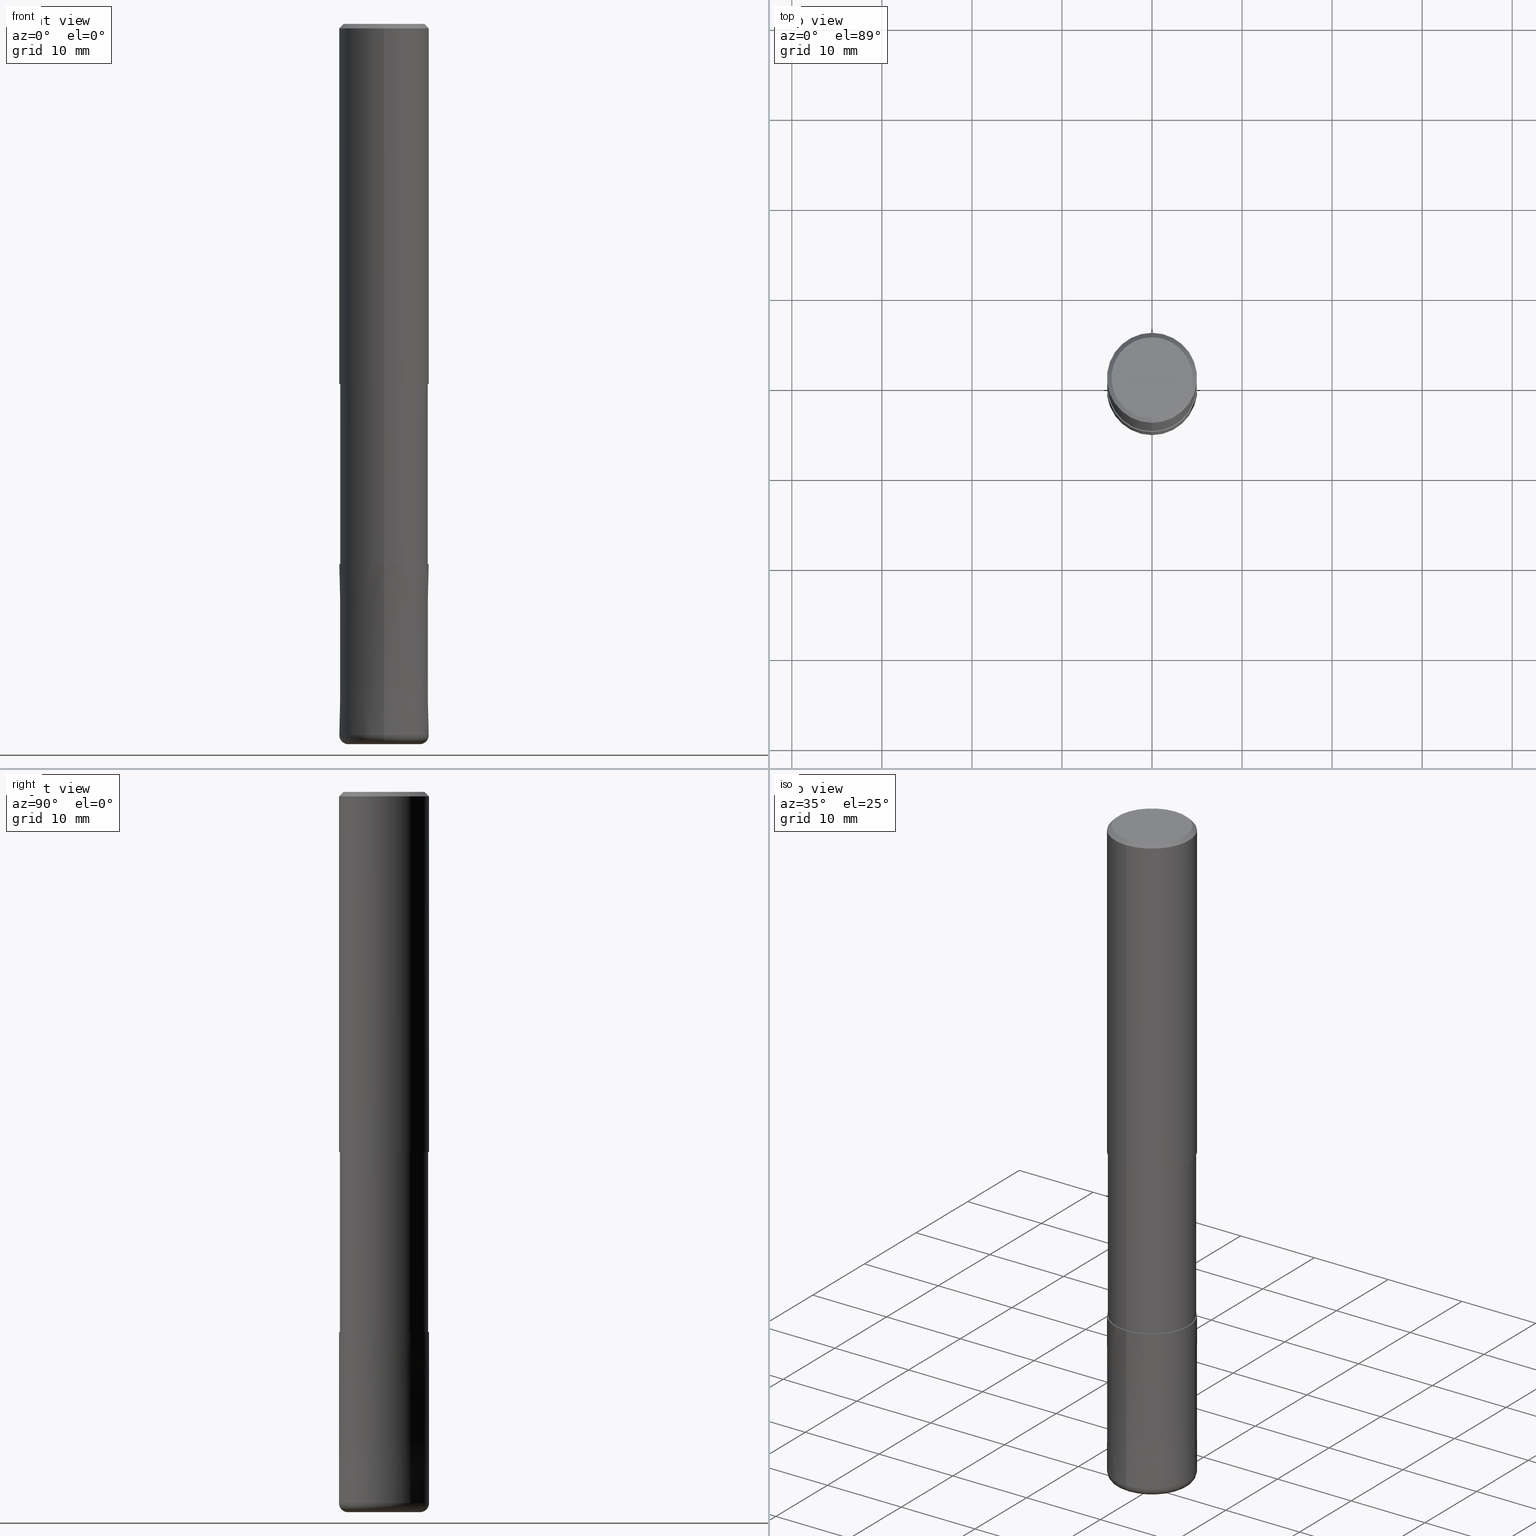
[diagram: canonical four-view strip — front | top / right | iso, engineering-drawing reading convention]
A machine part, canonical four-view strip (front | top / right | iso — engineering-drawing reading convention). The complete STEP part file that produces these views, byte-faithful:
ISO-10303-21;
HEADER;
FILE_DESCRIPTION(('no description'),'unknown implementation level');
FILE_NAME('CXLRS5100-10-40-Huellk.stp','  ',('CIMSOURCE GmbH'),('CADClick - KiM GmbH - www.kimweb.de'),'unknown preprocess','ACIS','unknown authorization');
FILE_SCHEMA(('automotive_design'));
ENDSEC;
DATA;
#1=MECHANICAL_DESIGN_GEOMETRIC_PRESENTATION_REPRESENTATION(' ',(#14,#15,#16,#17,#18,#19,#20,#21,#22,#23,#24,#25,#26,#27,#28,#29,#30,#31,#32,#33,#34,#35,#36,#37,#38,#39,#40,#41,#42,#43,#44,#45,#46,#47,#48,#49,#50,#51,#52,#53,#54,#55,#56,#57,#58,#59,#60,#61,#62,#63,#64,#65,#66,#67,#68,#69,#70,#71,#72,#73,#74,#75,#76,#77,#78,#79,#80,#81,#82,#83,#84,#85,#86,#87,#88,#89,#90,#91,#92,#93,#94,#95,#96,#97),#10);
#2=PRODUCT_DEFINITION_CONTEXT('',#98,'design');
#3=APPLICATION_PROTOCOL_DEFINITION('INTERNATIONAL STANDARD','automotive_design',1994,#98);
#4=PRODUCT_CATEGORY_RELATIONSHIP('NONE','NONE',#99,#100);
#5=SHAPE_DEFINITION_REPRESENTATION(#101,#102);
#6=PRODUCT_DEFINITION_CONTEXT('',#103,'design');
#7=APPLICATION_PROTOCOL_DEFINITION('INTERNATIONAL STANDARD','automotive_design',1994,#103);
#8=PRODUCT_CATEGORY_RELATIONSHIP('NONE','NONE',#104,#105);
#9=SHAPE_DEFINITION_REPRESENTATION(#106,#107);
#10= (GEOMETRIC_REPRESENTATION_CONTEXT(3)GLOBAL_UNCERTAINTY_ASSIGNED_CONTEXT((#110))GLOBAL_UNIT_ASSIGNED_CONTEXT((#112,#113,#114))REPRESENTATION_CONTEXT('NONE','WORKSPACE'));
#14=STYLED_ITEM('',(#116),#117);
#15=STYLED_ITEM('',(#118),#119);
#16=STYLED_ITEM('',(#120),#121);
#17=STYLED_ITEM('',(#122),#123);
#18=STYLED_ITEM('',(#124),#125);
#19=STYLED_ITEM('',(#126),#127);
#20=STYLED_ITEM('',(#128),#129);
#21=STYLED_ITEM('',(#130),#131);
#22=STYLED_ITEM('',(#132),#133);
#23=STYLED_ITEM('',(#134),#135);
#24=STYLED_ITEM('',(#136),#137);
#25=STYLED_ITEM('',(#138),#139);
#26=STYLED_ITEM('',(#140),#141);
#27=STYLED_ITEM('',(#142),#143);
#28=STYLED_ITEM('',(#144),#145);
#29=STYLED_ITEM('',(#146),#147);
#30=STYLED_ITEM('',(#148),#149);
#31=STYLED_ITEM('',(#150),#151);
#32=STYLED_ITEM('',(#152),#153);
#33=STYLED_ITEM('',(#154),#155);
#34=STYLED_ITEM('',(#156),#157);
#35=STYLED_ITEM('',(#158),#159);
#36=STYLED_ITEM('',(#160),#161);
#37=STYLED_ITEM('',(#162),#163);
#38=STYLED_ITEM('',(#164),#165);
#39=STYLED_ITEM('',(#166),#167);
#40=STYLED_ITEM('',(#168),#169);
#41=STYLED_ITEM('',(#170),#171);
#42=STYLED_ITEM('',(#172),#173);
#43=STYLED_ITEM('',(#174),#175);
#44=STYLED_ITEM('',(#176),#177);
#45=STYLED_ITEM('',(#178),#179);
#46=STYLED_ITEM('',(#180),#181);
#47=STYLED_ITEM('',(#182),#183);
#48=STYLED_ITEM('',(#184),#185);
#49=STYLED_ITEM('',(#186),#187);
#50=STYLED_ITEM('',(#188),#189);
#51=STYLED_ITEM('',(#190),#191);
#52=STYLED_ITEM('',(#192),#193);
#53=STYLED_ITEM('',(#194),#195);
#54=STYLED_ITEM('',(#196),#197);
#55=STYLED_ITEM('',(#198),#199);
#56=STYLED_ITEM('',(#200),#201);
#57=STYLED_ITEM('',(#202),#203);
#58=STYLED_ITEM('',(#204),#205);
#59=STYLED_ITEM('',(#206),#207);
#60=STYLED_ITEM('',(#208),#209);
#61=STYLED_ITEM('',(#210),#211);
#62=STYLED_ITEM('',(#212),#213);
#63=STYLED_ITEM('',(#214),#215);
#64=STYLED_ITEM('',(#216),#217);
#65=STYLED_ITEM('',(#218),#219);
#66=STYLED_ITEM('',(#220),#221);
#67=STYLED_ITEM('',(#222),#223);
#68=STYLED_ITEM('',(#224),#225);
#69=STYLED_ITEM('',(#226),#227);
#70=STYLED_ITEM('',(#228),#229);
#71=STYLED_ITEM('',(#230),#231);
#72=STYLED_ITEM('',(#232),#233);
#73=STYLED_ITEM('',(#234),#235);
#74=STYLED_ITEM('',(#236),#237);
#75=STYLED_ITEM('',(#238),#239);
#76=STYLED_ITEM('',(#240),#241);
#77=STYLED_ITEM('',(#242),#243);
#78=STYLED_ITEM('',(#244),#245);
#79=STYLED_ITEM('',(#246),#247);
#80=STYLED_ITEM('',(#248),#249);
#81=STYLED_ITEM('',(#250),#251);
#82=STYLED_ITEM('',(#252),#253);
#83=STYLED_ITEM('',(#254),#255);
#84=STYLED_ITEM('',(#256),#257);
#85=STYLED_ITEM('',(#258),#259);
#86=STYLED_ITEM('',(#260),#261);
#87=STYLED_ITEM('',(#262),#263);
#88=STYLED_ITEM('',(#264),#265);
#89=STYLED_ITEM('',(#266),#267);
#90=STYLED_ITEM('',(#268),#269);
#91=STYLED_ITEM('',(#270),#271);
#92=STYLED_ITEM('',(#272),#273);
#93=STYLED_ITEM('',(#274),#275);
#94=STYLED_ITEM('',(#276),#277);
#95=STYLED_ITEM('',(#278),#279);
#96=STYLED_ITEM('',(#280),#281);
#97=STYLED_ITEM('',(#282),#283);
#98=APPLICATION_CONTEXT(' ');
#99=PRODUCT_CATEGORY('part','NONE');
#100=PRODUCT_RELATED_PRODUCT_CATEGORY('detail',' ',(#284));
#101=PRODUCT_DEFINITION_SHAPE('NONE','NONE',#285);
#102=ADVANCED_BREP_SHAPE_REPRESENTATION('1',(#283,#286),#10);
#103=APPLICATION_CONTEXT(' ');
#104=PRODUCT_CATEGORY('part','NONE');
#105=PRODUCT_RELATED_PRODUCT_CATEGORY('detail',' ',(#287));
#106=PRODUCT_DEFINITION_SHAPE('NONE','NONE',#288);
#107=ADVANCED_BREP_SHAPE_REPRESENTATION('2',(#183,#289),#10);
#110=UNCERTAINTY_MEASURE_WITH_UNIT(LENGTH_MEASURE(1.0E-006),#112,'','');
#112= (CONVERSION_BASED_UNIT('MILLIMETRE',#292)LENGTH_UNIT()NAMED_UNIT(#295));
#113= (NAMED_UNIT(#297)PLANE_ANGLE_UNIT()SI_UNIT($,.RADIAN.));
#114= (NAMED_UNIT(#297)SOLID_ANGLE_UNIT()SI_UNIT($,.STERADIAN.));
#116=PRESENTATION_STYLE_ASSIGNMENT((#303));
#117=ADVANCED_FACE('',(#304),#305,.T.);
#118=PRESENTATION_STYLE_ASSIGNMENT((#306));
#119=VERTEX_POINT('',#307);
#120=PRESENTATION_STYLE_ASSIGNMENT((#308));
#121=EDGE_CURVE('',#119,#165,#309,.T.);
#122=PRESENTATION_STYLE_ASSIGNMENT((#310));
#123=EDGE_CURVE('',#203,#253,#311,.T.);
#124=PRESENTATION_STYLE_ASSIGNMENT((#312));
#125=EDGE_CURVE('',#225,#279,#313,.T.);
#126=PRESENTATION_STYLE_ASSIGNMENT((#314));
#127=ADVANCED_FACE('',(#315),#316,.T.);
#128=PRESENTATION_STYLE_ASSIGNMENT((#317));
#129=EDGE_CURVE('',#137,#133,#318,.T.);
#130=PRESENTATION_STYLE_ASSIGNMENT((#319));
#131=EDGE_CURVE('',#271,#219,#320,.T.);
#132=PRESENTATION_STYLE_ASSIGNMENT((#321));
#133=VERTEX_POINT('',#322);
#134=PRESENTATION_STYLE_ASSIGNMENT((#323));
#135=ADVANCED_FACE('',(#324),#325,.T.);
#136=PRESENTATION_STYLE_ASSIGNMENT((#326));
#137=VERTEX_POINT('',#327);
#138=PRESENTATION_STYLE_ASSIGNMENT((#328));
#139=VERTEX_POINT('',#329);
#140=PRESENTATION_STYLE_ASSIGNMENT((#330));
#141=EDGE_CURVE('',#155,#231,#331,.T.);
#142=PRESENTATION_STYLE_ASSIGNMENT((#332));
#143=ADVANCED_FACE('',(#333,#334),#335,.T.);
#144=PRESENTATION_STYLE_ASSIGNMENT((#336));
#145=ADVANCED_FACE('',(#337),#338,.T.);
#146=PRESENTATION_STYLE_ASSIGNMENT((#339));
#147=VERTEX_POINT('',#340);
#148=PRESENTATION_STYLE_ASSIGNMENT((#341));
#149=EDGE_CURVE('',#165,#119,#342,.T.);
#150=PRESENTATION_STYLE_ASSIGNMENT((#343));
#151=VERTEX_POINT('',#344);
#152=PRESENTATION_STYLE_ASSIGNMENT((#345));
#153=EDGE_CURVE('',#139,#221,#346,.T.);
#154=PRESENTATION_STYLE_ASSIGNMENT((#347));
#155=VERTEX_POINT('',#348);
#156=PRESENTATION_STYLE_ASSIGNMENT((#349));
#157=EDGE_CURVE('',#163,#231,#350,.T.);
#158=PRESENTATION_STYLE_ASSIGNMENT((#351));
#159=EDGE_CURVE('',#231,#155,#352,.T.);
#160=PRESENTATION_STYLE_ASSIGNMENT((#353));
#161=EDGE_CURVE('',#279,#133,#354,.T.);
#162=PRESENTATION_STYLE_ASSIGNMENT((#355));
#163=VERTEX_POINT('',#356);
#164=PRESENTATION_STYLE_ASSIGNMENT((#357));
#165=VERTEX_POINT('',#358);
#166=PRESENTATION_STYLE_ASSIGNMENT((#359));
#167=EDGE_CURVE('',#139,#267,#360,.T.);
#168=PRESENTATION_STYLE_ASSIGNMENT((#361));
#169=EDGE_CURVE('',#147,#217,#362,.T.);
#170=PRESENTATION_STYLE_ASSIGNMENT((#363));
#171=EDGE_CURVE('',#261,#267,#364,.T.);
#172=PRESENTATION_STYLE_ASSIGNMENT((#365));
#173=EDGE_CURVE('',#221,#139,#366,.T.);
#174=PRESENTATION_STYLE_ASSIGNMENT((#367));
#175=ADVANCED_FACE('',(#368),#369,.T.);
#176=PRESENTATION_STYLE_ASSIGNMENT((#370));
#177=ADVANCED_FACE('',(#371),#372,.T.);
#178=PRESENTATION_STYLE_ASSIGNMENT((#373));
#179=EDGE_CURVE('',#279,#251,#374,.T.);
#180=PRESENTATION_STYLE_ASSIGNMENT((#375));
#181=EDGE_CURVE('',#155,#119,#376,.T.);
#182=PRESENTATION_STYLE_ASSIGNMENT((#377));
#183=MANIFOLD_SOLID_BREP('2',#378);
#184=PRESENTATION_STYLE_ASSIGNMENT((#379));
#185=ADVANCED_FACE('',(#380,#381),#382,.T.);
#186=PRESENTATION_STYLE_ASSIGNMENT((#383));
#187=EDGE_CURVE('',#223,#163,#384,.T.);
#188=PRESENTATION_STYLE_ASSIGNMENT((#385));
#189=EDGE_CURVE('',#253,#203,#386,.T.);
#190=PRESENTATION_STYLE_ASSIGNMENT((#387));
#191=EDGE_CURVE('',#165,#231,#388,.T.);
#192=PRESENTATION_STYLE_ASSIGNMENT((#389));
#193=EDGE_CURVE('',#267,#261,#390,.T.);
#194=PRESENTATION_STYLE_ASSIGNMENT((#391));
#195=EDGE_CURVE('',#137,#251,#392,.T.);
#196=PRESENTATION_STYLE_ASSIGNMENT((#393));
#197=EDGE_CURVE('',#251,#205,#394,.T.);
#198=PRESENTATION_STYLE_ASSIGNMENT((#395));
#199=EDGE_CURVE('',#253,#147,#396,.T.);
#200=PRESENTATION_STYLE_ASSIGNMENT((#397));
#201=EDGE_CURVE('',#219,#151,#398,.T.);
#202=PRESENTATION_STYLE_ASSIGNMENT((#399));
#203=VERTEX_POINT('',#400);
#204=PRESENTATION_STYLE_ASSIGNMENT((#401));
#205=VERTEX_POINT('',#402);
#206=PRESENTATION_STYLE_ASSIGNMENT((#403));
#207=ADVANCED_FACE('',(#404),#405,.T.);
#208=PRESENTATION_STYLE_ASSIGNMENT((#406));
#209=ADVANCED_FACE('',(#407),#408,.T.);
#210=PRESENTATION_STYLE_ASSIGNMENT((#409));
#211=EDGE_CURVE('',#269,#271,#410,.T.);
#212=PRESENTATION_STYLE_ASSIGNMENT((#411));
#213=EDGE_CURVE('',#225,#205,#412,.T.);
#214=PRESENTATION_STYLE_ASSIGNMENT((#413));
#215=ADVANCED_FACE('',(#414),#415,.F.);
#216=PRESENTATION_STYLE_ASSIGNMENT((#416));
#217=VERTEX_POINT('',#417);
#218=PRESENTATION_STYLE_ASSIGNMENT((#418));
#219=VERTEX_POINT('',#419);
#220=PRESENTATION_STYLE_ASSIGNMENT((#420));
#221=VERTEX_POINT('',#421);
#222=PRESENTATION_STYLE_ASSIGNMENT((#422));
#223=VERTEX_POINT('',#423);
#224=PRESENTATION_STYLE_ASSIGNMENT((#424));
#225=VERTEX_POINT('',#425);
#226=PRESENTATION_STYLE_ASSIGNMENT((#426));
#227=ADVANCED_FACE('',(#427),#428,.T.);
#228=PRESENTATION_STYLE_ASSIGNMENT((#429));
#229=EDGE_CURVE('',#155,#223,#430,.T.);
#230=PRESENTATION_STYLE_ASSIGNMENT((#431));
#231=VERTEX_POINT('',#432);
#232=PRESENTATION_STYLE_ASSIGNMENT((#433));
#233=EDGE_CURVE('',#133,#137,#434,.T.);
#234=PRESENTATION_STYLE_ASSIGNMENT((#435));
#235=ADVANCED_FACE('',(#436),#437,.T.);
#236=PRESENTATION_STYLE_ASSIGNMENT((#438));
#237=EDGE_CURVE('',#217,#147,#439,.T.);
#238=PRESENTATION_STYLE_ASSIGNMENT((#440));
#239=EDGE_CURVE('',#151,#269,#441,.T.);
#240=PRESENTATION_STYLE_ASSIGNMENT((#442));
#241=EDGE_CURVE('',#261,#221,#443,.T.);
#242=PRESENTATION_STYLE_ASSIGNMENT((#444));
#243=EDGE_CURVE('',#219,#271,#445,.T.);
#244=PRESENTATION_STYLE_ASSIGNMENT((#446));
#245=EDGE_CURVE('',#163,#223,#447,.T.);
#246=PRESENTATION_STYLE_ASSIGNMENT((#448));
#247=ADVANCED_FACE('',(#449,#450),#451,.T.);
#248=PRESENTATION_STYLE_ASSIGNMENT((#452));
#249=ADVANCED_FACE('',(#453),#454,.F.);
#250=PRESENTATION_STYLE_ASSIGNMENT((#455));
#251=VERTEX_POINT('',#456);
#252=PRESENTATION_STYLE_ASSIGNMENT((#457));
#253=VERTEX_POINT('',#458);
#254=PRESENTATION_STYLE_ASSIGNMENT((#459));
#255=ADVANCED_FACE('',(#460),#461,.T.);
#256=PRESENTATION_STYLE_ASSIGNMENT((#462));
#257=ADVANCED_FACE('',(#463,#464),#465,.T.);
#258=PRESENTATION_STYLE_ASSIGNMENT((#466));
#259=ADVANCED_FACE('',(#467),#468,.T.);
#260=PRESENTATION_STYLE_ASSIGNMENT((#469));
#261=VERTEX_POINT('',#470);
#262=PRESENTATION_STYLE_ASSIGNMENT((#471));
#263=EDGE_CURVE('',#217,#203,#472,.T.);
#264=PRESENTATION_STYLE_ASSIGNMENT((#473));
#265=ADVANCED_FACE('',(#474),#475,.T.);
#266=PRESENTATION_STYLE_ASSIGNMENT((#476));
#267=VERTEX_POINT('',#477);
#268=PRESENTATION_STYLE_ASSIGNMENT((#478));
#269=VERTEX_POINT('',#479);
#270=PRESENTATION_STYLE_ASSIGNMENT((#480));
#271=VERTEX_POINT('',#481);
#272=PRESENTATION_STYLE_ASSIGNMENT((#482));
#273=EDGE_CURVE('',#251,#279,#483,.T.);
#274=PRESENTATION_STYLE_ASSIGNMENT((#484));
#275=EDGE_CURVE('',#269,#151,#485,.T.);
#276=PRESENTATION_STYLE_ASSIGNMENT((#486));
#277=ADVANCED_FACE('',(#487),#488,.T.);
#278=PRESENTATION_STYLE_ASSIGNMENT((#489));
#279=VERTEX_POINT('',#490);
#280=PRESENTATION_STYLE_ASSIGNMENT((#491));
#281=EDGE_CURVE('',#205,#225,#492,.T.);
#282=PRESENTATION_STYLE_ASSIGNMENT((#493));
#283=MANIFOLD_SOLID_BREP('1',#494);
#284=PRODUCT('1','1','PART-1-DESC',(#495));
#285=PRODUCT_DEFINITION('NONE','NONE',#496,#2);
#286=AXIS2_PLACEMENT_3D('',#497,#498,#499);
#287=PRODUCT('2','2','PART-2-DESC',(#500));
#288=PRODUCT_DEFINITION('NONE','NONE',#501,#6);
#289=AXIS2_PLACEMENT_3D('',#502,#503,#504);
#292=LENGTH_MEASURE_WITH_UNIT(LENGTH_MEASURE(1.0),#505);
#295=DIMENSIONAL_EXPONENTS(1.0,0.0,0.0,0.0,0.0,0.0,0.0);
#297=DIMENSIONAL_EXPONENTS(0.0,0.0,0.0,0.0,0.0,0.0,0.0);
#303=SURFACE_STYLE_USAGE(.BOTH.,#506);
#304=FACE_OUTER_BOUND('',#507,.T.);
#305=CYLINDRICAL_SURFACE('',#508,4.89995);
#306=POINT_STYLE(' ',#509,POSITIVE_LENGTH_MEASURE(1.0E-006),#510);
#307=CARTESIAN_POINT('',(6.1229093084765E-016,-4.9999,-60.0));
#308=CURVE_STYLE('',#511,POSITIVE_LENGTH_MEASURE(1.0E-006),#512);
#309=CIRCLE('',#513,4.9999);
#310=CURVE_STYLE('',#514,POSITIVE_LENGTH_MEASURE(1.0E-006),#515);
#311=CIRCLE('',#516,2.25);
#312=CURVE_STYLE('',#517,POSITIVE_LENGTH_MEASURE(1.0E-006),#518);
#313=LINE('',#519,#520);
#314=SURFACE_STYLE_USAGE(.BOTH.,#521);
#315=FACE_OUTER_BOUND('',#522,.T.);
#316=CYLINDRICAL_SURFACE('',#523,5.0);
#317=CURVE_STYLE('',#524,POSITIVE_LENGTH_MEASURE(1.0E-006),#525);
#318=CIRCLE('',#526,5.0);
#319=CURVE_STYLE('',#527,POSITIVE_LENGTH_MEASURE(1.0E-006),#528);
#320=CIRCLE('',#529,4.89995);
#321=POINT_STYLE(' ',#530,POSITIVE_LENGTH_MEASURE(1.0E-006),#531);
#322=CARTESIAN_POINT('',(0.0,5.0,-40.0));
#323=SURFACE_STYLE_USAGE(.BOTH.,#532);
#324=FACE_OUTER_BOUND('',#533,.T.);
#325=CONICAL_SURFACE('',#534,4.99995,5.26315789467598E-006);
#326=POINT_STYLE(' ',#535,POSITIVE_LENGTH_MEASURE(1.0E-006),#536);
#327=CARTESIAN_POINT('',(6.12303176911189E-016,-5.0,-40.0));
#328=POINT_STYLE(' ',#537,POSITIVE_LENGTH_MEASURE(1.0E-006),#538);
#329=CARTESIAN_POINT('',(0.0,2.25,-60.0));
#330=CURVE_STYLE('',#539,POSITIVE_LENGTH_MEASURE(1.0E-006),#540);
#331=CIRCLE('',#541,5.0);
#332=SURFACE_STYLE_USAGE(.BOTH.,#542);
#333=FACE_OUTER_BOUND('',#543,.T.);
#334=FACE_BOUND('',#544,.T.);
#335=PLANE('',#545);
#336=SURFACE_STYLE_USAGE(.BOTH.,#546);
#337=FACE_OUTER_BOUND('',#547,.T.);
#338=CONICAL_SURFACE('',#548,4.99995,5.26315789467598E-006);
#339=POINT_STYLE(' ',#549,POSITIVE_LENGTH_MEASURE(1.0E-006),#550);
#340=CARTESIAN_POINT('',(2.75536429610035E-016,-2.25,-60.0));
#341=CURVE_STYLE('',#551,POSITIVE_LENGTH_MEASURE(1.0E-006),#552);
#342=CIRCLE('',#553,4.9999);
#343=POINT_STYLE(' ',#554,POSITIVE_LENGTH_MEASURE(1.0E-006),#555);
#344=CARTESIAN_POINT('',(0.0,4.89995,-60.0));
#345=CURVE_STYLE('',#556,POSITIVE_LENGTH_MEASURE(1.0E-006),#557);
#346=CIRCLE('',#558,2.25);
#347=POINT_STYLE(' ',#559,POSITIVE_LENGTH_MEASURE(1.0E-006),#560);
#348=CARTESIAN_POINT('',(6.12303176911188E-016,-5.0,-79.0));
#349=CURVE_STYLE('',#561,POSITIVE_LENGTH_MEASURE(1.0E-006),#562);
#350=CIRCLE('',#563,0.999999999999989);
#351=CURVE_STYLE('',#564,POSITIVE_LENGTH_MEASURE(1.0E-006),#565);
#352=CIRCLE('',#566,5.0);
#353=CURVE_STYLE('',#567,POSITIVE_LENGTH_MEASURE(1.0E-006),#568);
#354=LINE('',#569,#570);
#355=POINT_STYLE(' ',#571,POSITIVE_LENGTH_MEASURE(1.0E-006),#572);
#356=CARTESIAN_POINT('',(0.0,4.0,-80.0));
#357=POINT_STYLE(' ',#573,POSITIVE_LENGTH_MEASURE(1.0E-006),#574);
#358=CARTESIAN_POINT('',(0.0,4.9999,-60.0));
#359=CURVE_STYLE('',#575,POSITIVE_LENGTH_MEASURE(1.0E-006),#576);
#360=LINE('',#577,#578);
#361=CURVE_STYLE('',#579,POSITIVE_LENGTH_MEASURE(1.0E-006),#580);
#362=CIRCLE('',#581,2.25);
#363=CURVE_STYLE('',#582,POSITIVE_LENGTH_MEASURE(1.0E-006),#583);
#364=CIRCLE('',#584,2.25);
#365=CURVE_STYLE('',#585,POSITIVE_LENGTH_MEASURE(1.0E-006),#586);
#366=CIRCLE('',#587,2.25);
#367=SURFACE_STYLE_USAGE(.BOTH.,#588);
#368=FACE_OUTER_BOUND('',#589,.T.);
#369=CYLINDRICAL_SURFACE('',#590,2.25);
#370=SURFACE_STYLE_USAGE(.BOTH.,#591);
#371=FACE_OUTER_BOUND('',#592,.T.);
#372=PLANE('',#593);
#373=CURVE_STYLE('',#594,POSITIVE_LENGTH_MEASURE(1.0E-006),#595);
#374=CIRCLE('',#596,5.0);
#375=CURVE_STYLE('',#597,POSITIVE_LENGTH_MEASURE(1.0E-006),#598);
#376=LINE('',#599,#600);
#377=SURFACE_STYLE_USAGE(.BOTH.,#601);
#378=CLOSED_SHELL('',(#215,#207,#135,#247,#145,#209,#257,#249));
#379=SURFACE_STYLE_USAGE(.BOTH.,#602);
#380=FACE_BOUND('',#603,.T.);
#381=FACE_OUTER_BOUND('',#604,.T.);
#382=PLANE('',#605);
#383=CURVE_STYLE('',#606,POSITIVE_LENGTH_MEASURE(1.0E-006),#607);
#384=CIRCLE('',#608,4.0);
#385=CURVE_STYLE('',#609,POSITIVE_LENGTH_MEASURE(1.0E-006),#610);
#386=CIRCLE('',#611,2.25);
#387=CURVE_STYLE('',#612,POSITIVE_LENGTH_MEASURE(1.0E-006),#613);
#388=LINE('',#614,#615);
#389=CURVE_STYLE('',#616,POSITIVE_LENGTH_MEASURE(1.0E-006),#617);
#390=CIRCLE('',#618,2.25);
#391=CURVE_STYLE('',#619,POSITIVE_LENGTH_MEASURE(1.0E-006),#620);
#392=LINE('',#621,#622);
#393=CURVE_STYLE('',#623,POSITIVE_LENGTH_MEASURE(1.0E-006),#624);
#394=LINE('',#625,#626);
#395=CURVE_STYLE('',#627,POSITIVE_LENGTH_MEASURE(1.0E-006),#628);
#396=LINE('',#629,#630);
#397=CURVE_STYLE('',#631,POSITIVE_LENGTH_MEASURE(1.0E-006),#632);
#398=LINE('',#633,#634);
#399=POINT_STYLE(' ',#635,POSITIVE_LENGTH_MEASURE(1.0E-006),#636);
#400=CARTESIAN_POINT('',(0.0,2.25,-79.8));
#401=POINT_STYLE(' ',#637,POSITIVE_LENGTH_MEASURE(1.0E-006),#638);
#402=CARTESIAN_POINT('',(5.5107285922007E-016,-4.5,0.0));
#403=SURFACE_STYLE_USAGE(.BOTH.,#639);
#404=FACE_OUTER_BOUND('',#640,.T.);
#405=TOROIDAL_SURFACE('',#641,4.00000000000001,0.999999999999989);
#406=SURFACE_STYLE_USAGE(.BOTH.,#642);
#407=FACE_OUTER_BOUND('',#643,.T.);
#408=TOROIDAL_SURFACE('',#644,4.00000000000001,0.999999999999989);
#409=CURVE_STYLE('',#645,POSITIVE_LENGTH_MEASURE(1.0E-006),#646);
#410=LINE('',#647,#648);
#411=CURVE_STYLE('',#649,POSITIVE_LENGTH_MEASURE(1.0E-006),#650);
#412=CIRCLE('',#651,4.5);
#413=SURFACE_STYLE_USAGE(.BOTH.,#652);
#414=FACE_OUTER_BOUND('',#653,.T.);
#415=CYLINDRICAL_SURFACE('',#654,2.25);
#416=POINT_STYLE(' ',#655,POSITIVE_LENGTH_MEASURE(1.0E-006),#656);
#417=CARTESIAN_POINT('',(0.0,2.25,-60.0));
#418=POINT_STYLE(' ',#657,POSITIVE_LENGTH_MEASURE(1.0E-006),#658);
#419=CARTESIAN_POINT('',(0.0,4.89995,-40.0));
#420=POINT_STYLE(' ',#659,POSITIVE_LENGTH_MEASURE(1.0E-006),#660);
#421=CARTESIAN_POINT('',(2.75536429610035E-016,-2.25,-60.0));
#422=POINT_STYLE(' ',#661,POSITIVE_LENGTH_MEASURE(1.0E-006),#662);
#423=CARTESIAN_POINT('',(4.89842541528951E-016,-4.0,-80.0));
#424=POINT_STYLE(' ',#663,POSITIVE_LENGTH_MEASURE(1.0E-006),#664);
#425=CARTESIAN_POINT('',(0.0,4.5,0.0));
#426=SURFACE_STYLE_USAGE(.BOTH.,#665);
#427=FACE_OUTER_BOUND('',#666,.T.);
#428=CONICAL_SURFACE('',#667,4.75,0.785398163397448);
#429=CURVE_STYLE('',#668,POSITIVE_LENGTH_MEASURE(1.0E-006),#669);
#430=CIRCLE('',#670,0.999999999999989);
#431=POINT_STYLE(' ',#671,POSITIVE_LENGTH_MEASURE(1.0E-006),#672);
#432=CARTESIAN_POINT('',(0.0,5.0,-79.0));
#433=CURVE_STYLE('',#673,POSITIVE_LENGTH_MEASURE(1.0E-006),#674);
#434=CIRCLE('',#675,5.0);
#435=SURFACE_STYLE_USAGE(.BOTH.,#676);
#436=FACE_OUTER_BOUND('',#677,.T.);
#437=PLANE('',#678);
#438=CURVE_STYLE('',#679,POSITIVE_LENGTH_MEASURE(1.0E-006),#680);
#439=CIRCLE('',#681,2.25);
#440=CURVE_STYLE('',#682,POSITIVE_LENGTH_MEASURE(1.0E-006),#683);
#441=CIRCLE('',#684,4.89995);
#442=CURVE_STYLE('',#685,POSITIVE_LENGTH_MEASURE(1.0E-006),#686);
#443=LINE('',#687,#688);
#444=CURVE_STYLE('',#689,POSITIVE_LENGTH_MEASURE(1.0E-006),#690);
#445=CIRCLE('',#691,4.89995);
#446=CURVE_STYLE('',#692,POSITIVE_LENGTH_MEASURE(1.0E-006),#693);
#447=CIRCLE('',#694,4.0);
#448=SURFACE_STYLE_USAGE(.BOTH.,#695);
#449=FACE_OUTER_BOUND('',#696,.T.);
#450=FACE_BOUND('',#697,.T.);
#451=PLANE('',#698);
#452=SURFACE_STYLE_USAGE(.BOTH.,#699);
#453=FACE_OUTER_BOUND('',#700,.T.);
#454=CYLINDRICAL_SURFACE('',#701,2.25);
#455=POINT_STYLE(' ',#702,POSITIVE_LENGTH_MEASURE(1.0E-006),#703);
#456=CARTESIAN_POINT('',(6.12303176911189E-016,-5.0,-0.5));
#457=POINT_STYLE(' ',#704,POSITIVE_LENGTH_MEASURE(1.0E-006),#705);
#458=CARTESIAN_POINT('',(2.75536429610035E-016,-2.25,-79.8));
#459=SURFACE_STYLE_USAGE(.BOTH.,#706);
#460=FACE_OUTER_BOUND('',#707,.T.);
#461=CONICAL_SURFACE('',#708,4.75,0.785398163397448);
#462=SURFACE_STYLE_USAGE(.BOTH.,#709);
#463=FACE_BOUND('',#710,.T.);
#464=FACE_OUTER_BOUND('',#711,.T.);
#465=PLANE('',#712);
#466=SURFACE_STYLE_USAGE(.BOTH.,#713);
#467=FACE_OUTER_BOUND('',#714,.T.);
#468=CYLINDRICAL_SURFACE('',#715,2.25);
#469=POINT_STYLE(' ',#716,POSITIVE_LENGTH_MEASURE(1.0E-006),#717);
#470=CARTESIAN_POINT('',(2.75536429610035E-016,-2.25,-80.0));
#471=CURVE_STYLE('',#718,POSITIVE_LENGTH_MEASURE(1.0E-006),#719);
#472=LINE('',#720,#721);
#473=SURFACE_STYLE_USAGE(.BOTH.,#722);
#474=FACE_OUTER_BOUND('',#723,.T.);
#475=CYLINDRICAL_SURFACE('',#724,4.89995);
#476=POINT_STYLE(' ',#725,POSITIVE_LENGTH_MEASURE(1.0E-006),#726);
#477=CARTESIAN_POINT('',(0.0,2.25,-80.0));
#478=POINT_STYLE(' ',#727,POSITIVE_LENGTH_MEASURE(1.0E-006),#728);
#479=CARTESIAN_POINT('',(6.00050990341196E-016,-4.89995,-60.0));
#480=POINT_STYLE(' ',#729,POSITIVE_LENGTH_MEASURE(1.0E-006),#730);
#481=CARTESIAN_POINT('',(6.00050990341196E-016,-4.89995,-40.0));
#482=CURVE_STYLE('',#731,POSITIVE_LENGTH_MEASURE(1.0E-006),#732);
#483=CIRCLE('',#733,5.0);
#484=CURVE_STYLE('',#734,POSITIVE_LENGTH_MEASURE(1.0E-006),#735);
#485=CIRCLE('',#736,4.89995);
#486=SURFACE_STYLE_USAGE(.BOTH.,#737);
#487=FACE_OUTER_BOUND('',#738,.T.);
#488=CYLINDRICAL_SURFACE('',#739,5.0);
#489=POINT_STYLE(' ',#740,POSITIVE_LENGTH_MEASURE(1.0E-006),#741);
#490=CARTESIAN_POINT('',(0.0,5.0,-0.5));
#491=CURVE_STYLE('',#742,POSITIVE_LENGTH_MEASURE(1.0E-006),#743);
#492=CIRCLE('',#744,4.5);
#493=SURFACE_STYLE_USAGE(.BOTH.,#745);
#494=CLOSED_SHELL('',(#259,#265,#277,#227,#143,#177,#255,#127,#117,#185,#175,#235));
#495=PRODUCT_CONTEXT('',#98,'mechanical');
#496=PRODUCT_DEFINITION_FORMATION_WITH_SPECIFIED_SOURCE(' ','NONE',#284,.NOT_KNOWN.);
#497=CARTESIAN_POINT('',(0.0,0.0,0.0));
#498=DIRECTION('',(0.0,0.0,1.0));
#499=DIRECTION('',(1.0,0.0,0.0));
#500=PRODUCT_CONTEXT('',#103,'mechanical');
#501=PRODUCT_DEFINITION_FORMATION_WITH_SPECIFIED_SOURCE(' ','NONE',#287,.NOT_KNOWN.);
#502=CARTESIAN_POINT('',(0.0,0.0,0.0));
#503=DIRECTION('',(0.0,0.0,1.0));
#504=DIRECTION('',(1.0,0.0,0.0));
#505= (NAMED_UNIT(#295)LENGTH_UNIT()SI_UNIT(.MILLI.,.METRE.));
#506=SURFACE_SIDE_STYLE('',(#747));
#507=EDGE_LOOP('',(#748,#749,#750,#751));
#508=AXIS2_PLACEMENT_3D('',#752,#753,#754);
#509=PRE_DEFINED_MARKER('');
#510=COLOUR_RGB('',0.800000011920929,0.800000011920929,0.800000011920929);
#511=DRAUGHTING_PRE_DEFINED_CURVE_FONT('continuous');
#512=COLOUR_RGB('',0.800000011920929,0.800000011920929,0.800000011920929);
#513=AXIS2_PLACEMENT_3D('',#755,#756,#757);
#514=DRAUGHTING_PRE_DEFINED_CURVE_FONT('continuous');
#515=COLOUR_RGB('',0.498039215803146,0.498039215803146,0.498039215803146);
#516=AXIS2_PLACEMENT_3D('',#758,#759,#760);
#517=DRAUGHTING_PRE_DEFINED_CURVE_FONT('continuous');
#518=COLOUR_RGB('',0.498039215803146,0.498039215803146,0.498039215803146);
#519=CARTESIAN_POINT('',(-5.81688018065629E-016,4.75,-0.25));
#520=VECTOR('',#761,1.0);
#521=SURFACE_SIDE_STYLE('',(#762));
#522=EDGE_LOOP('',(#763,#764,#765,#766));
#523=AXIS2_PLACEMENT_3D('',#767,#768,#769);
#524=DRAUGHTING_PRE_DEFINED_CURVE_FONT('continuous');
#525=COLOUR_RGB('',0.498039215803146,0.498039215803146,0.498039215803146);
#526=AXIS2_PLACEMENT_3D('',#770,#771,#772);
#527=DRAUGHTING_PRE_DEFINED_CURVE_FONT('continuous');
#528=COLOUR_RGB('',0.498039215803146,0.498039215803146,0.498039215803146);
#529=AXIS2_PLACEMENT_3D('',#773,#774,#775);
#530=PRE_DEFINED_MARKER('');
#531=COLOUR_RGB('',0.498039215803146,0.498039215803146,0.498039215803146);
#532=SURFACE_SIDE_STYLE('',(#776));
#533=EDGE_LOOP('',(#777,#778,#779,#780));
#534=AXIS2_PLACEMENT_3D('',#781,#782,#783);
#535=PRE_DEFINED_MARKER('');
#536=COLOUR_RGB('',0.498039215803146,0.498039215803146,0.498039215803146);
#537=PRE_DEFINED_MARKER('');
#538=COLOUR_RGB('',0.800000011920929,0.800000011920929,0.800000011920929);
#539=DRAUGHTING_PRE_DEFINED_CURVE_FONT('continuous');
#540=COLOUR_RGB('',0.800000011920929,0.800000011920929,0.800000011920929);
#541=AXIS2_PLACEMENT_3D('',#784,#785,#786);
#542=SURFACE_SIDE_STYLE('',(#787));
#543=EDGE_LOOP('',(#788,#789));
#544=EDGE_LOOP('',(#790,#791));
#545=AXIS2_PLACEMENT_3D('',#792,#793,#794);
#546=SURFACE_SIDE_STYLE('',(#795));
#547=EDGE_LOOP('',(#796,#797,#798,#799));
#548=AXIS2_PLACEMENT_3D('',#800,#801,#802);
#549=PRE_DEFINED_MARKER('');
#550=COLOUR_RGB('',0.498039215803146,0.498039215803146,0.498039215803146);
#551=DRAUGHTING_PRE_DEFINED_CURVE_FONT('continuous');
#552=COLOUR_RGB('',0.800000011920929,0.800000011920929,0.800000011920929);
#553=AXIS2_PLACEMENT_3D('',#803,#804,#805);
#554=PRE_DEFINED_MARKER('');
#555=COLOUR_RGB('',0.498039215803146,0.498039215803146,0.498039215803146);
#556=DRAUGHTING_PRE_DEFINED_CURVE_FONT('continuous');
#557=COLOUR_RGB('',0.800000011920929,0.800000011920929,0.800000011920929);
#558=AXIS2_PLACEMENT_3D('',#806,#807,#808);
#559=PRE_DEFINED_MARKER('');
#560=COLOUR_RGB('',0.800000011920929,0.800000011920929,0.800000011920929);
#561=DRAUGHTING_PRE_DEFINED_CURVE_FONT('continuous');
#562=COLOUR_RGB('',0.800000011920929,0.800000011920929,0.800000011920929);
#563=AXIS2_PLACEMENT_3D('',#809,#810,#811);
#564=DRAUGHTING_PRE_DEFINED_CURVE_FONT('continuous');
#565=COLOUR_RGB('',0.800000011920929,0.800000011920929,0.800000011920929);
#566=AXIS2_PLACEMENT_3D('',#812,#813,#814);
#567=DRAUGHTING_PRE_DEFINED_CURVE_FONT('continuous');
#568=COLOUR_RGB('',0.498039215803146,0.498039215803146,0.498039215803146);
#569=CARTESIAN_POINT('',(-6.12303176911189E-016,5.0,-20.25));
#570=VECTOR('',#815,1.0);
#571=PRE_DEFINED_MARKER('');
#572=COLOUR_RGB('',0.800000011920929,0.800000011920929,0.800000011920929);
#573=PRE_DEFINED_MARKER('');
#574=COLOUR_RGB('',0.800000011920929,0.800000011920929,0.800000011920929);
#575=DRAUGHTING_PRE_DEFINED_CURVE_FONT('continuous');
#576=COLOUR_RGB('',0.800000011920929,0.800000011920929,0.800000011920929);
#577=CARTESIAN_POINT('',(-2.75536429610035E-016,2.25,-70.0));
#578=VECTOR('',#816,1.0);
#579=DRAUGHTING_PRE_DEFINED_CURVE_FONT('continuous');
#580=COLOUR_RGB('',0.498039215803146,0.498039215803146,0.498039215803146);
#581=AXIS2_PLACEMENT_3D('',#817,#818,#819);
#582=DRAUGHTING_PRE_DEFINED_CURVE_FONT('continuous');
#583=COLOUR_RGB('',0.800000011920929,0.800000011920929,0.800000011920929);
#584=AXIS2_PLACEMENT_3D('',#820,#821,#822);
#585=DRAUGHTING_PRE_DEFINED_CURVE_FONT('continuous');
#586=COLOUR_RGB('',0.800000011920929,0.800000011920929,0.800000011920929);
#587=AXIS2_PLACEMENT_3D('',#823,#824,#825);
#588=SURFACE_SIDE_STYLE('',(#826));
#589=EDGE_LOOP('',(#827,#828,#829,#830));
#590=AXIS2_PLACEMENT_3D('',#831,#832,#833);
#591=SURFACE_SIDE_STYLE('',(#834));
#592=EDGE_LOOP('',(#835,#836));
#593=AXIS2_PLACEMENT_3D('',#837,#838,#839);
#594=DRAUGHTING_PRE_DEFINED_CURVE_FONT('continuous');
#595=COLOUR_RGB('',0.498039215803146,0.498039215803146,0.498039215803146);
#596=AXIS2_PLACEMENT_3D('',#840,#841,#842);
#597=DRAUGHTING_PRE_DEFINED_CURVE_FONT('continuous');
#598=COLOUR_RGB('',0.800000011920929,0.800000011920929,0.800000011920929);
#599=CARTESIAN_POINT('',(6.12297053879419E-016,-4.99995,-69.5));
#600=VECTOR('',#843,1.0);
#601=SURFACE_SIDE_STYLE('',(#844));
#602=SURFACE_SIDE_STYLE('',(#845));
#603=EDGE_LOOP('',(#846,#847));
#604=EDGE_LOOP('',(#848,#849));
#605=AXIS2_PLACEMENT_3D('',#850,#851,#852);
#606=DRAUGHTING_PRE_DEFINED_CURVE_FONT('continuous');
#607=COLOUR_RGB('',0.800000011920929,0.800000011920929,0.800000011920929);
#608=AXIS2_PLACEMENT_3D('',#853,#854,#855);
#609=DRAUGHTING_PRE_DEFINED_CURVE_FONT('continuous');
#610=COLOUR_RGB('',0.498039215803146,0.498039215803146,0.498039215803146);
#611=AXIS2_PLACEMENT_3D('',#856,#857,#858);
#612=DRAUGHTING_PRE_DEFINED_CURVE_FONT('continuous');
#613=COLOUR_RGB('',0.800000011920929,0.800000011920929,0.800000011920929);
#614=CARTESIAN_POINT('',(-6.12297053879419E-016,4.99995,-69.5));
#615=VECTOR('',#859,1.0);
#616=DRAUGHTING_PRE_DEFINED_CURVE_FONT('continuous');
#617=COLOUR_RGB('',0.800000011920929,0.800000011920929,0.800000011920929);
#618=AXIS2_PLACEMENT_3D('',#860,#861,#862);
#619=DRAUGHTING_PRE_DEFINED_CURVE_FONT('continuous');
#620=COLOUR_RGB('',0.498039215803146,0.498039215803146,0.498039215803146);
#621=CARTESIAN_POINT('',(6.12303176911189E-016,-5.0,-20.25));
#622=VECTOR('',#863,1.0);
#623=DRAUGHTING_PRE_DEFINED_CURVE_FONT('continuous');
#624=COLOUR_RGB('',0.498039215803146,0.498039215803146,0.498039215803146);
#625=CARTESIAN_POINT('',(5.81688018065629E-016,-4.75,-0.25));
#626=VECTOR('',#864,1.0);
#627=DRAUGHTING_PRE_DEFINED_CURVE_FONT('continuous');
#628=COLOUR_RGB('',0.498039215803146,0.498039215803146,0.498039215803146);
#629=CARTESIAN_POINT('',(2.75536429610035E-016,-2.25,-69.9));
#630=VECTOR('',#865,1.0);
#631=DRAUGHTING_PRE_DEFINED_CURVE_FONT('continuous');
#632=COLOUR_RGB('',0.498039215803146,0.498039215803146,0.498039215803146);
#633=CARTESIAN_POINT('',(-6.00050990341196E-016,4.89995,-50.0));
#634=VECTOR('',#866,1.0);
#635=PRE_DEFINED_MARKER('');
#636=COLOUR_RGB('',0.498039215803146,0.498039215803146,0.498039215803146);
#637=PRE_DEFINED_MARKER('');
#638=COLOUR_RGB('',0.498039215803146,0.498039215803146,0.498039215803146);
#639=SURFACE_SIDE_STYLE('',(#867));
#640=EDGE_LOOP('',(#868,#869,#870,#871));
#641=AXIS2_PLACEMENT_3D('',#872,#873,#874);
#642=SURFACE_SIDE_STYLE('',(#875));
#643=EDGE_LOOP('',(#876,#877,#878,#879));
#644=AXIS2_PLACEMENT_3D('',#880,#881,#882);
#645=DRAUGHTING_PRE_DEFINED_CURVE_FONT('continuous');
#646=COLOUR_RGB('',0.498039215803146,0.498039215803146,0.498039215803146);
#647=CARTESIAN_POINT('',(6.00050990341196E-016,-4.89995,-50.0));
#648=VECTOR('',#883,1.0);
#649=DRAUGHTING_PRE_DEFINED_CURVE_FONT('continuous');
#650=COLOUR_RGB('',0.498039215803146,0.498039215803146,0.498039215803146);
#651=AXIS2_PLACEMENT_3D('',#884,#885,#886);
#652=SURFACE_SIDE_STYLE('',(#887));
#653=EDGE_LOOP('',(#888,#889,#890,#891));
#654=AXIS2_PLACEMENT_3D('',#892,#893,#894);
#655=PRE_DEFINED_MARKER('');
#656=COLOUR_RGB('',0.498039215803146,0.498039215803146,0.498039215803146);
#657=PRE_DEFINED_MARKER('');
#658=COLOUR_RGB('',0.498039215803146,0.498039215803146,0.498039215803146);
#659=PRE_DEFINED_MARKER('');
#660=COLOUR_RGB('',0.800000011920929,0.800000011920929,0.800000011920929);
#661=PRE_DEFINED_MARKER('');
#662=COLOUR_RGB('',0.800000011920929,0.800000011920929,0.800000011920929);
#663=PRE_DEFINED_MARKER('');
#664=COLOUR_RGB('',0.498039215803146,0.498039215803146,0.498039215803146);
#665=SURFACE_SIDE_STYLE('',(#895));
#666=EDGE_LOOP('',(#896,#897,#898,#899));
#667=AXIS2_PLACEMENT_3D('',#900,#901,#902);
#668=DRAUGHTING_PRE_DEFINED_CURVE_FONT('continuous');
#669=COLOUR_RGB('',0.800000011920929,0.800000011920929,0.800000011920929);
#670=AXIS2_PLACEMENT_3D('',#903,#904,#905);
#671=PRE_DEFINED_MARKER('');
#672=COLOUR_RGB('',0.800000011920929,0.800000011920929,0.800000011920929);
#673=DRAUGHTING_PRE_DEFINED_CURVE_FONT('continuous');
#674=COLOUR_RGB('',0.498039215803146,0.498039215803146,0.498039215803146);
#675=AXIS2_PLACEMENT_3D('',#906,#907,#908);
#676=SURFACE_SIDE_STYLE('',(#909));
#677=EDGE_LOOP('',(#910,#911));
#678=AXIS2_PLACEMENT_3D('',#912,#913,#914);
#679=DRAUGHTING_PRE_DEFINED_CURVE_FONT('continuous');
#680=COLOUR_RGB('',0.498039215803146,0.498039215803146,0.498039215803146);
#681=AXIS2_PLACEMENT_3D('',#915,#916,#917);
#682=DRAUGHTING_PRE_DEFINED_CURVE_FONT('continuous');
#683=COLOUR_RGB('',0.498039215803146,0.498039215803146,0.498039215803146);
#684=AXIS2_PLACEMENT_3D('',#918,#919,#920);
#685=DRAUGHTING_PRE_DEFINED_CURVE_FONT('continuous');
#686=COLOUR_RGB('',0.800000011920929,0.800000011920929,0.800000011920929);
#687=CARTESIAN_POINT('',(2.75536429610035E-016,-2.25,-70.0));
#688=VECTOR('',#921,1.0);
#689=DRAUGHTING_PRE_DEFINED_CURVE_FONT('continuous');
#690=COLOUR_RGB('',0.498039215803146,0.498039215803146,0.498039215803146);
#691=AXIS2_PLACEMENT_3D('',#922,#923,#924);
#692=DRAUGHTING_PRE_DEFINED_CURVE_FONT('continuous');
#693=COLOUR_RGB('',0.800000011920929,0.800000011920929,0.800000011920929);
#694=AXIS2_PLACEMENT_3D('',#925,#926,#927);
#695=SURFACE_SIDE_STYLE('',(#928));
#696=EDGE_LOOP('',(#929,#930));
#697=EDGE_LOOP('',(#931,#932));
#698=AXIS2_PLACEMENT_3D('',#933,#934,#935);
#699=SURFACE_SIDE_STYLE('',(#936));
#700=EDGE_LOOP('',(#937,#938,#939,#940));
#701=AXIS2_PLACEMENT_3D('',#941,#942,#943);
#702=PRE_DEFINED_MARKER('');
#703=COLOUR_RGB('',0.498039215803146,0.498039215803146,0.498039215803146);
#704=PRE_DEFINED_MARKER('');
#705=COLOUR_RGB('',0.498039215803146,0.498039215803146,0.498039215803146);
#706=SURFACE_SIDE_STYLE('',(#944));
#707=EDGE_LOOP('',(#945,#946,#947,#948));
#708=AXIS2_PLACEMENT_3D('',#949,#950,#951);
#709=SURFACE_SIDE_STYLE('',(#952));
#710=EDGE_LOOP('',(#953,#954));
#711=EDGE_LOOP('',(#955,#956));
#712=AXIS2_PLACEMENT_3D('',#957,#958,#959);
#713=SURFACE_SIDE_STYLE('',(#960));
#714=EDGE_LOOP('',(#961,#962,#963,#964));
#715=AXIS2_PLACEMENT_3D('',#965,#966,#967);
#716=PRE_DEFINED_MARKER('');
#717=COLOUR_RGB('',0.800000011920929,0.800000011920929,0.800000011920929);
#718=DRAUGHTING_PRE_DEFINED_CURVE_FONT('continuous');
#719=COLOUR_RGB('',0.498039215803146,0.498039215803146,0.498039215803146);
#720=CARTESIAN_POINT('',(-2.75536429610035E-016,2.25,-69.9));
#721=VECTOR('',#968,1.0);
#722=SURFACE_SIDE_STYLE('',(#969));
#723=EDGE_LOOP('',(#970,#971,#972,#973));
#724=AXIS2_PLACEMENT_3D('',#974,#975,#976);
#725=PRE_DEFINED_MARKER('');
#726=COLOUR_RGB('',0.800000011920929,0.800000011920929,0.800000011920929);
#727=PRE_DEFINED_MARKER('');
#728=COLOUR_RGB('',0.498039215803146,0.498039215803146,0.498039215803146);
#729=PRE_DEFINED_MARKER('');
#730=COLOUR_RGB('',0.498039215803146,0.498039215803146,0.498039215803146);
#731=DRAUGHTING_PRE_DEFINED_CURVE_FONT('continuous');
#732=COLOUR_RGB('',0.498039215803146,0.498039215803146,0.498039215803146);
#733=AXIS2_PLACEMENT_3D('',#977,#978,#979);
#734=DRAUGHTING_PRE_DEFINED_CURVE_FONT('continuous');
#735=COLOUR_RGB('',0.498039215803146,0.498039215803146,0.498039215803146);
#736=AXIS2_PLACEMENT_3D('',#980,#981,#982);
#737=SURFACE_SIDE_STYLE('',(#983));
#738=EDGE_LOOP('',(#984,#985,#986,#987));
#739=AXIS2_PLACEMENT_3D('',#988,#989,#990);
#740=PRE_DEFINED_MARKER('');
#741=COLOUR_RGB('',0.498039215803146,0.498039215803146,0.498039215803146);
#742=DRAUGHTING_PRE_DEFINED_CURVE_FONT('continuous');
#743=COLOUR_RGB('',0.498039215803146,0.498039215803146,0.498039215803146);
#744=AXIS2_PLACEMENT_3D('',#991,#992,#993);
#745=SURFACE_SIDE_STYLE('',(#994));
#747=SURFACE_STYLE_FILL_AREA(#995);
#748=ORIENTED_EDGE('',*,*,#201,.T.);
#749=ORIENTED_EDGE('',*,*,#275,.F.);
#750=ORIENTED_EDGE('',*,*,#211,.T.);
#751=ORIENTED_EDGE('',*,*,#131,.T.);
#752=CARTESIAN_POINT('',(0.0,0.0,-50.0));
#753=DIRECTION('',(-0.0,-0.0,1.0));
#754=DIRECTION('',(0.0,1.0,0.0));
#755=CARTESIAN_POINT('',(0.0,0.0,-60.0));
#756=DIRECTION('',(0.0,0.0,-1.0));
#757=DIRECTION('',(0.0,1.0,0.0));
#758=CARTESIAN_POINT('',(0.0,0.0,-79.8));
#759=DIRECTION('',(0.0,0.0,-1.0));
#760=DIRECTION('',(0.0,1.0,0.0));
#761=DIRECTION('',(-8.65927457071936E-017,0.707106781186548,-0.707106781186548));
#762=SURFACE_STYLE_FILL_AREA(#996);
#763=ORIENTED_EDGE('',*,*,#161,.T.);
#764=ORIENTED_EDGE('',*,*,#129,.F.);
#765=ORIENTED_EDGE('',*,*,#195,.T.);
#766=ORIENTED_EDGE('',*,*,#273,.T.);
#767=CARTESIAN_POINT('',(0.0,0.0,-20.25));
#768=DIRECTION('',(-0.0,-0.0,1.0));
#769=DIRECTION('',(0.0,1.0,0.0));
#770=CARTESIAN_POINT('',(0.0,0.0,-40.0));
#771=DIRECTION('',(0.0,0.0,-1.0));
#772=DIRECTION('',(0.0,1.0,0.0));
#773=CARTESIAN_POINT('',(0.0,0.0,-40.0));
#774=DIRECTION('',(0.0,0.0,-1.0));
#775=DIRECTION('',(0.0,1.0,0.0));
#776=SURFACE_STYLE_FILL_AREA(#997);
#777=ORIENTED_EDGE('',*,*,#191,.F.);
#778=ORIENTED_EDGE('',*,*,#149,.T.);
#779=ORIENTED_EDGE('',*,*,#181,.F.);
#780=ORIENTED_EDGE('',*,*,#159,.F.);
#781=CARTESIAN_POINT('',(0.0,0.0,-69.5));
#782=DIRECTION('',(0.0,-0.0,-1.0));
#783=DIRECTION('',(0.0,1.0,0.0));
#784=CARTESIAN_POINT('',(0.0,0.0,-79.0));
#785=DIRECTION('',(0.0,0.0,-1.0));
#786=DIRECTION('',(0.0,1.0,0.0));
#787=SURFACE_STYLE_FILL_AREA(#998);
#788=ORIENTED_EDGE('',*,*,#233,.T.);
#789=ORIENTED_EDGE('',*,*,#129,.T.);
#790=ORIENTED_EDGE('',*,*,#243,.F.);
#791=ORIENTED_EDGE('',*,*,#131,.F.);
#792=CARTESIAN_POINT('',(0.0,2.5,-40.0));
#793=DIRECTION('',(0.0,0.0,-1.0));
#794=DIRECTION('',(0.0,1.0,0.0));
#795=SURFACE_STYLE_FILL_AREA(#999);
#796=ORIENTED_EDGE('',*,*,#191,.T.);
#797=ORIENTED_EDGE('',*,*,#141,.F.);
#798=ORIENTED_EDGE('',*,*,#181,.T.);
#799=ORIENTED_EDGE('',*,*,#121,.T.);
#800=CARTESIAN_POINT('',(0.0,0.0,-69.5));
#801=DIRECTION('',(0.0,-0.0,-1.0));
#802=DIRECTION('',(0.0,1.0,0.0));
#803=CARTESIAN_POINT('',(0.0,0.0,-60.0));
#804=DIRECTION('',(0.0,0.0,-1.0));
#805=DIRECTION('',(0.0,1.0,0.0));
#806=CARTESIAN_POINT('',(0.0,0.0,-60.0));
#807=DIRECTION('',(0.0,0.0,-1.0));
#808=DIRECTION('',(0.0,1.0,0.0));
#809=CARTESIAN_POINT('',(-4.89842541528952E-016,4.00000000000001,-79.0));
#810=DIRECTION('',(1.0,1.22460635382238E-016,0.0));
#811=DIRECTION('',(-1.22460635382238E-016,1.0,0.0));
#812=CARTESIAN_POINT('',(0.0,0.0,-79.0));
#813=DIRECTION('',(0.0,0.0,-1.0));
#814=DIRECTION('',(0.0,1.0,0.0));
#815=DIRECTION('',(0.0,0.0,-1.0));
#816=DIRECTION('',(0.0,-0.0,-1.0));
#817=CARTESIAN_POINT('',(0.0,0.0,-60.0));
#818=DIRECTION('',(0.0,0.0,-1.0));
#819=DIRECTION('',(0.0,1.0,0.0));
#820=CARTESIAN_POINT('',(0.0,0.0,-80.0));
#821=DIRECTION('',(0.0,0.0,-1.0));
#822=DIRECTION('',(0.0,1.0,0.0));
#823=CARTESIAN_POINT('',(0.0,0.0,-60.0));
#824=DIRECTION('',(0.0,0.0,-1.0));
#825=DIRECTION('',(0.0,1.0,0.0));
#826=SURFACE_STYLE_FILL_AREA(#1000);
#827=ORIENTED_EDGE('',*,*,#263,.T.);
#828=ORIENTED_EDGE('',*,*,#189,.F.);
#829=ORIENTED_EDGE('',*,*,#199,.T.);
#830=ORIENTED_EDGE('',*,*,#169,.T.);
#831=CARTESIAN_POINT('',(0.0,0.0,-69.9));
#832=DIRECTION('',(-0.0,-0.0,1.0));
#833=DIRECTION('',(0.0,1.0,0.0));
#834=SURFACE_STYLE_FILL_AREA(#1001);
#835=ORIENTED_EDGE('',*,*,#213,.F.);
#836=ORIENTED_EDGE('',*,*,#281,.F.);
#837=CARTESIAN_POINT('',(0.0,2.25,0.0));
#838=DIRECTION('',(-0.0,0.0,1.0));
#839=DIRECTION('',(0.0,-1.0,0.0));
#840=CARTESIAN_POINT('',(0.0,0.0,-0.5));
#841=DIRECTION('',(0.0,0.0,-1.0));
#842=DIRECTION('',(0.0,1.0,0.0));
#843=DIRECTION('',(-6.44529659896085E-022,5.26315789465168E-006,0.99999999998615));
#844=SURFACE_STYLE_FILL_AREA(#1002);
#845=SURFACE_STYLE_FILL_AREA(#1003);
#846=ORIENTED_EDGE('',*,*,#237,.F.);
#847=ORIENTED_EDGE('',*,*,#169,.F.);
#848=ORIENTED_EDGE('',*,*,#239,.T.);
#849=ORIENTED_EDGE('',*,*,#275,.T.);
#850=CARTESIAN_POINT('',(0.0,3.574975,-60.0));
#851=DIRECTION('',(0.0,0.0,-1.0));
#852=DIRECTION('',(0.0,1.0,0.0));
#853=CARTESIAN_POINT('',(0.0,0.0,-80.0));
#854=DIRECTION('',(0.0,0.0,-1.0));
#855=DIRECTION('',(0.0,1.0,0.0));
#856=CARTESIAN_POINT('',(0.0,0.0,-79.8));
#857=DIRECTION('',(0.0,0.0,-1.0));
#858=DIRECTION('',(0.0,1.0,0.0));
#859=DIRECTION('',(-6.44529659896085E-022,5.26315789465168E-006,-0.99999999998615));
#860=CARTESIAN_POINT('',(0.0,0.0,-80.0));
#861=DIRECTION('',(0.0,0.0,-1.0));
#862=DIRECTION('',(0.0,1.0,0.0));
#863=DIRECTION('',(-0.0,-0.0,1.0));
#864=DIRECTION('',(-8.65927457071936E-017,0.707106781186548,0.707106781186548));
#865=DIRECTION('',(-0.0,-0.0,1.0));
#866=DIRECTION('',(0.0,0.0,-1.0));
#867=SURFACE_STYLE_FILL_AREA(#1004);
#868=ORIENTED_EDGE('',*,*,#229,.F.);
#869=ORIENTED_EDGE('',*,*,#141,.T.);
#870=ORIENTED_EDGE('',*,*,#157,.F.);
#871=ORIENTED_EDGE('',*,*,#187,.F.);
#872=CARTESIAN_POINT('',(0.0,0.0,-79.0));
#873=DIRECTION('',(0.0,0.0,-1.0));
#874=DIRECTION('',(0.0,-1.0,0.0));
#875=SURFACE_STYLE_FILL_AREA(#1005);
#876=ORIENTED_EDGE('',*,*,#229,.T.);
#877=ORIENTED_EDGE('',*,*,#245,.F.);
#878=ORIENTED_EDGE('',*,*,#157,.T.);
#879=ORIENTED_EDGE('',*,*,#159,.T.);
#880=CARTESIAN_POINT('',(0.0,0.0,-79.0));
#881=DIRECTION('',(0.0,0.0,-1.0));
#882=DIRECTION('',(0.0,-1.0,0.0));
#883=DIRECTION('',(-0.0,-0.0,1.0));
#884=CARTESIAN_POINT('',(0.0,0.0,0.0));
#885=DIRECTION('',(0.0,0.0,-1.0));
#886=DIRECTION('',(0.0,1.0,0.0));
#887=SURFACE_STYLE_FILL_AREA(#1006);
#888=ORIENTED_EDGE('',*,*,#167,.F.);
#889=ORIENTED_EDGE('',*,*,#173,.F.);
#890=ORIENTED_EDGE('',*,*,#241,.F.);
#891=ORIENTED_EDGE('',*,*,#171,.T.);
#892=CARTESIAN_POINT('',(0.0,0.0,-70.0));
#893=DIRECTION('',(-0.0,-0.0,1.0));
#894=DIRECTION('',(0.0,1.0,0.0));
#895=SURFACE_STYLE_FILL_AREA(#1007);
#896=ORIENTED_EDGE('',*,*,#125,.F.);
#897=ORIENTED_EDGE('',*,*,#213,.T.);
#898=ORIENTED_EDGE('',*,*,#197,.F.);
#899=ORIENTED_EDGE('',*,*,#179,.F.);
#900=CARTESIAN_POINT('',(0.0,0.0,-0.25));
#901=DIRECTION('',(0.0,-0.0,-1.0));
#902=DIRECTION('',(0.0,1.0,0.0));
#903=CARTESIAN_POINT('',(4.89842541528952E-016,-4.00000000000001,-79.0));
#904=DIRECTION('',(1.0,1.22460635382238E-016,0.0));
#905=DIRECTION('',(1.22460635382238E-016,-1.0,-0.0));
#906=CARTESIAN_POINT('',(0.0,0.0,-40.0));
#907=DIRECTION('',(0.0,0.0,-1.0));
#908=DIRECTION('',(0.0,1.0,0.0));
#909=SURFACE_STYLE_FILL_AREA(#1008);
#910=ORIENTED_EDGE('',*,*,#123,.T.);
#911=ORIENTED_EDGE('',*,*,#189,.T.);
#912=CARTESIAN_POINT('',(0.0,1.125,-79.8));
#913=DIRECTION('',(0.0,0.0,-1.0));
#914=DIRECTION('',(0.0,1.0,0.0));
#915=CARTESIAN_POINT('',(0.0,0.0,-60.0));
#916=DIRECTION('',(0.0,0.0,-1.0));
#917=DIRECTION('',(0.0,1.0,0.0));
#918=CARTESIAN_POINT('',(0.0,0.0,-60.0));
#919=DIRECTION('',(0.0,0.0,-1.0));
#920=DIRECTION('',(0.0,1.0,0.0));
#921=DIRECTION('',(0.0,-0.0,1.0));
#922=CARTESIAN_POINT('',(0.0,0.0,-40.0));
#923=DIRECTION('',(0.0,0.0,-1.0));
#924=DIRECTION('',(0.0,1.0,0.0));
#925=CARTESIAN_POINT('',(0.0,0.0,-80.0));
#926=DIRECTION('',(0.0,0.0,-1.0));
#927=DIRECTION('',(0.0,1.0,0.0));
#928=SURFACE_STYLE_FILL_AREA(#1009);
#929=ORIENTED_EDGE('',*,*,#149,.F.);
#930=ORIENTED_EDGE('',*,*,#121,.F.);
#931=ORIENTED_EDGE('',*,*,#153,.T.);
#932=ORIENTED_EDGE('',*,*,#173,.T.);
#933=CARTESIAN_POINT('',(0.0,3.62495,-60.0));
#934=DIRECTION('',(-0.0,0.0,1.0));
#935=DIRECTION('',(0.0,-1.0,0.0));
#936=SURFACE_STYLE_FILL_AREA(#1010);
#937=ORIENTED_EDGE('',*,*,#167,.T.);
#938=ORIENTED_EDGE('',*,*,#193,.T.);
#939=ORIENTED_EDGE('',*,*,#241,.T.);
#940=ORIENTED_EDGE('',*,*,#153,.F.);
#941=CARTESIAN_POINT('',(0.0,0.0,-70.0));
#942=DIRECTION('',(-0.0,-0.0,1.0));
#943=DIRECTION('',(0.0,1.0,0.0));
#944=SURFACE_STYLE_FILL_AREA(#1011);
#945=ORIENTED_EDGE('',*,*,#125,.T.);
#946=ORIENTED_EDGE('',*,*,#273,.F.);
#947=ORIENTED_EDGE('',*,*,#197,.T.);
#948=ORIENTED_EDGE('',*,*,#281,.T.);
#949=CARTESIAN_POINT('',(0.0,0.0,-0.25));
#950=DIRECTION('',(0.0,-0.0,-1.0));
#951=DIRECTION('',(0.0,1.0,0.0));
#952=SURFACE_STYLE_FILL_AREA(#1012);
#953=ORIENTED_EDGE('',*,*,#193,.F.);
#954=ORIENTED_EDGE('',*,*,#171,.F.);
#955=ORIENTED_EDGE('',*,*,#245,.T.);
#956=ORIENTED_EDGE('',*,*,#187,.T.);
#957=CARTESIAN_POINT('',(0.0,3.125,-80.0));
#958=DIRECTION('',(0.0,0.0,-1.0));
#959=DIRECTION('',(0.0,1.0,0.0));
#960=SURFACE_STYLE_FILL_AREA(#1013);
#961=ORIENTED_EDGE('',*,*,#263,.F.);
#962=ORIENTED_EDGE('',*,*,#237,.T.);
#963=ORIENTED_EDGE('',*,*,#199,.F.);
#964=ORIENTED_EDGE('',*,*,#123,.F.);
#965=CARTESIAN_POINT('',(0.0,0.0,-69.9));
#966=DIRECTION('',(-0.0,-0.0,1.0));
#967=DIRECTION('',(0.0,1.0,0.0));
#968=DIRECTION('',(0.0,0.0,-1.0));
#969=SURFACE_STYLE_FILL_AREA(#1014);
#970=ORIENTED_EDGE('',*,*,#201,.F.);
#971=ORIENTED_EDGE('',*,*,#243,.T.);
#972=ORIENTED_EDGE('',*,*,#211,.F.);
#973=ORIENTED_EDGE('',*,*,#239,.F.);
#974=CARTESIAN_POINT('',(0.0,0.0,-50.0));
#975=DIRECTION('',(-0.0,-0.0,1.0));
#976=DIRECTION('',(0.0,1.0,0.0));
#977=CARTESIAN_POINT('',(0.0,0.0,-0.5));
#978=DIRECTION('',(0.0,0.0,-1.0));
#979=DIRECTION('',(0.0,1.0,0.0));
#980=CARTESIAN_POINT('',(0.0,0.0,-60.0));
#981=DIRECTION('',(0.0,0.0,-1.0));
#982=DIRECTION('',(0.0,1.0,0.0));
#983=SURFACE_STYLE_FILL_AREA(#1015);
#984=ORIENTED_EDGE('',*,*,#161,.F.);
#985=ORIENTED_EDGE('',*,*,#179,.T.);
#986=ORIENTED_EDGE('',*,*,#195,.F.);
#987=ORIENTED_EDGE('',*,*,#233,.F.);
#988=CARTESIAN_POINT('',(0.0,0.0,-20.25));
#989=DIRECTION('',(-0.0,-0.0,1.0));
#990=DIRECTION('',(0.0,1.0,0.0));
#991=CARTESIAN_POINT('',(0.0,0.0,0.0));
#992=DIRECTION('',(0.0,0.0,-1.0));
#993=DIRECTION('',(0.0,1.0,0.0));
#994=SURFACE_STYLE_FILL_AREA(#1016);
#995=FILL_AREA_STYLE('',(#1017));
#996=FILL_AREA_STYLE('',(#1018));
#997=FILL_AREA_STYLE('',(#1019));
#998=FILL_AREA_STYLE('',(#1020));
#999=FILL_AREA_STYLE('',(#1021));
#1000=FILL_AREA_STYLE('',(#1022));
#1001=FILL_AREA_STYLE('',(#1023));
#1002=FILL_AREA_STYLE('',(#1024));
#1003=FILL_AREA_STYLE('',(#1025));
#1004=FILL_AREA_STYLE('',(#1026));
#1005=FILL_AREA_STYLE('',(#1027));
#1006=FILL_AREA_STYLE('',(#1028));
#1007=FILL_AREA_STYLE('',(#1029));
#1008=FILL_AREA_STYLE('',(#1030));
#1009=FILL_AREA_STYLE('',(#1031));
#1010=FILL_AREA_STYLE('',(#1032));
#1011=FILL_AREA_STYLE('',(#1033));
#1012=FILL_AREA_STYLE('',(#1034));
#1013=FILL_AREA_STYLE('',(#1035));
#1014=FILL_AREA_STYLE('',(#1036));
#1015=FILL_AREA_STYLE('',(#1037));
#1016=FILL_AREA_STYLE('',(#1038));
#1017=FILL_AREA_STYLE_COLOUR('',#1039);
#1018=FILL_AREA_STYLE_COLOUR('',#1040);
#1019=FILL_AREA_STYLE_COLOUR('',#1041);
#1020=FILL_AREA_STYLE_COLOUR('',#1042);
#1021=FILL_AREA_STYLE_COLOUR('',#1043);
#1022=FILL_AREA_STYLE_COLOUR('',#1044);
#1023=FILL_AREA_STYLE_COLOUR('',#1045);
#1024=FILL_AREA_STYLE_COLOUR('',#1046);
#1025=FILL_AREA_STYLE_COLOUR('',#1047);
#1026=FILL_AREA_STYLE_COLOUR('',#1048);
#1027=FILL_AREA_STYLE_COLOUR('',#1049);
#1028=FILL_AREA_STYLE_COLOUR('',#1050);
#1029=FILL_AREA_STYLE_COLOUR('',#1051);
#1030=FILL_AREA_STYLE_COLOUR('',#1052);
#1031=FILL_AREA_STYLE_COLOUR('',#1053);
#1032=FILL_AREA_STYLE_COLOUR('',#1054);
#1033=FILL_AREA_STYLE_COLOUR('',#1055);
#1034=FILL_AREA_STYLE_COLOUR('',#1056);
#1035=FILL_AREA_STYLE_COLOUR('',#1057);
#1036=FILL_AREA_STYLE_COLOUR('',#1058);
#1037=FILL_AREA_STYLE_COLOUR('',#1059);
#1038=FILL_AREA_STYLE_COLOUR('',#1060);
#1039=COLOUR_RGB('',0.498039215803146,0.498039215803146,0.498039215803146);
#1040=COLOUR_RGB('',0.498039215803146,0.498039215803146,0.498039215803146);
#1041=COLOUR_RGB('',0.800000011920929,0.800000011920929,0.800000011920929);
#1042=COLOUR_RGB('',0.498039215803146,0.498039215803146,0.498039215803146);
#1043=COLOUR_RGB('',0.800000011920929,0.800000011920929,0.800000011920929);
#1044=COLOUR_RGB('',0.498039215803146,0.498039215803146,0.498039215803146);
#1045=COLOUR_RGB('',0.498039215803146,0.498039215803146,0.498039215803146);
#1046=COLOUR_RGB('',0.800000011920929,0.800000011920929,0.800000011920929);
#1047=COLOUR_RGB('',0.498039215803146,0.498039215803146,0.498039215803146);
#1048=COLOUR_RGB('',0.800000011920929,0.800000011920929,0.800000011920929);
#1049=COLOUR_RGB('',0.800000011920929,0.800000011920929,0.800000011920929);
#1050=COLOUR_RGB('',0.800000011920929,0.800000011920929,0.800000011920929);
#1051=COLOUR_RGB('',0.498039215803146,0.498039215803146,0.498039215803146);
#1052=COLOUR_RGB('',0.498039215803146,0.498039215803146,0.498039215803146);
#1053=COLOUR_RGB('',0.800000011920929,0.800000011920929,0.800000011920929);
#1054=COLOUR_RGB('',0.800000011920929,0.800000011920929,0.800000011920929);
#1055=COLOUR_RGB('',0.498039215803146,0.498039215803146,0.498039215803146);
#1056=COLOUR_RGB('',0.800000011920929,0.800000011920929,0.800000011920929);
#1057=COLOUR_RGB('',0.498039215803146,0.498039215803146,0.498039215803146);
#1058=COLOUR_RGB('',0.498039215803146,0.498039215803146,0.498039215803146);
#1059=COLOUR_RGB('',0.498039215803146,0.498039215803146,0.498039215803146);
#1060=COLOUR_RGB('',0.498039215803146,0.498039215803146,0.498039215803146);
#1061=AXIS2_PLACEMENT_3D('PCS',#1062,#1063,#1064);
#1062=CARTESIAN_POINT('',(0.0,0.0,0.0));
#1063=DIRECTION('',(0.0,0.0,1.0));
#1064=DIRECTION('',(1.0,0.0,0.0));
#1065=AXIS2_PLACEMENT_3D('CIP',#1066,#1067,#1068);
#1066=CARTESIAN_POINT('',(0.0,0.0,-80.0));
#1067=DIRECTION('',(0.0,0.0,1.0));
#1068=DIRECTION('',(1.0,0.0,0.0));
#1069=AXIS2_PLACEMENT_3D('CRP',#1070,#1071,#1072);
#1070=CARTESIAN_POINT('',(-5.0,0.0,-80.0));
#1071=DIRECTION('',(0.0,0.0,1.0));
#1072=DIRECTION('',(1.0,0.0,0.0));
#1073=AXIS2_PLACEMENT_3D('MCS',#1074,#1075,#1076);
#1074=CARTESIAN_POINT('',(0.0,0.0,-40.0));
#1075=DIRECTION('',(0.0,0.0,1.0));
#1076=DIRECTION('',(1.0,0.0,0.0));
#1077=CONSTRUCTIVE_GEOMETRY_REPRESENTATION_RELATIONSHIP('coordinate systems',$,#102,#1078);
#1078=CONSTRUCTIVE_GEOMETRY_REPRESENTATION('coordinate systems',(#1061,#1065,#1069,#1073),#10);
ENDSEC;
END-ISO-10303-21;
